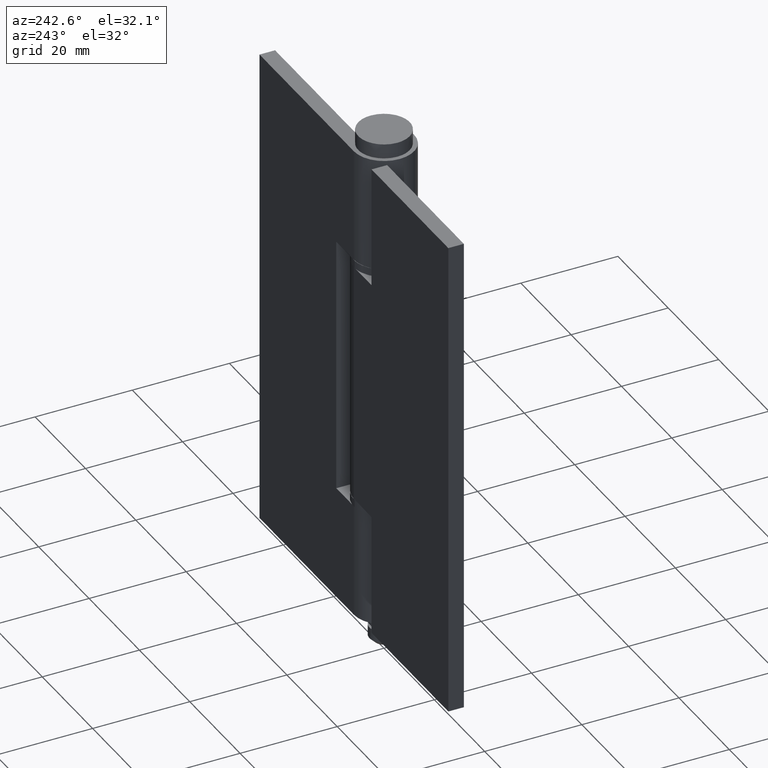
[diagram: clean part render]
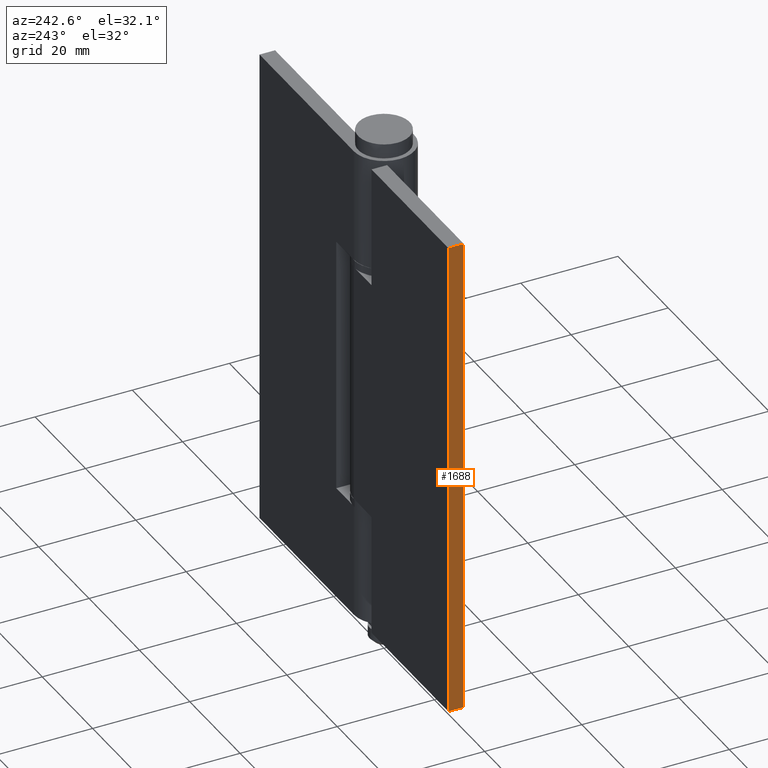
[diagram: same view with one face highlighted and labeled with its STEP entity id]
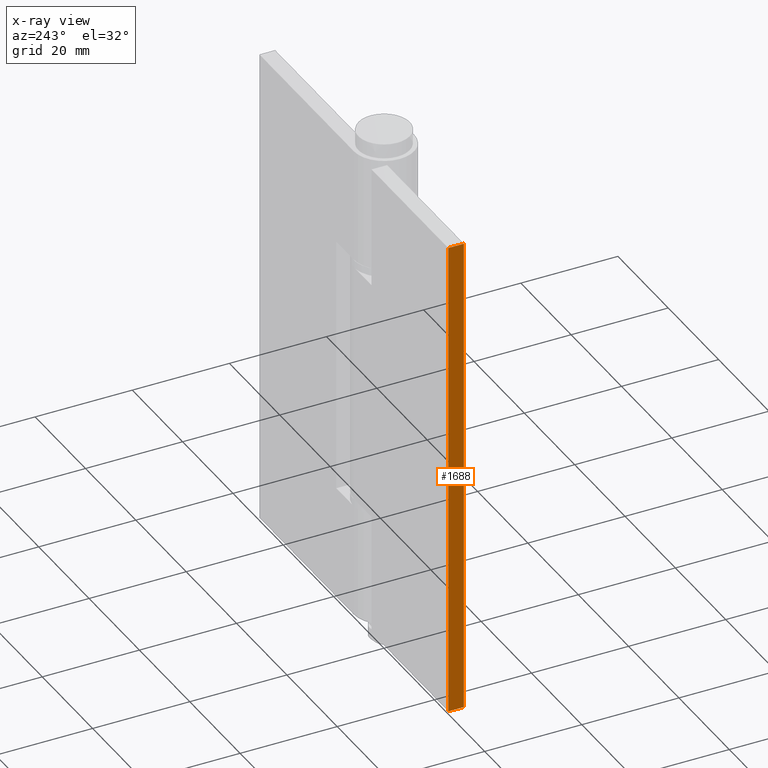
[diagram: x-ray of the same camera — body ghosted, the highlighted face saturated]
A machine part, auxiliary view. The second image highlights one B-rep face of the part: STEP entity #1688.
The next image is the same camera in x-ray: the body ghosted, the highlighted face saturated — about 0% of this face is hidden behind the body in this view.
In plain terms, the highlighted face is a freeform B-spline surface patch.
Its self-contained STEP definition (entity closure, byte-faithful):
#1653=CARTESIAN_POINT('',(-37.500008000000001,2.840159967684873,-4.994999456530599));
#1654=CARTESIAN_POINT('',(-37.500008000000001,2.840159967684873,104.994995138739300));
#1655=CARTESIAN_POINT('',(-37.500008000000001,6.359840889263936,-4.994999456530599));
#1656=CARTESIAN_POINT('',(-37.500008000000001,6.359840889263936,104.994995138739300));
#1657=B_SPLINE_SURFACE_WITH_KNOTS('',1,1,((#1653,#1655),(#1654,#1656)),.UNSPECIFIED.,.F.,.F.,.U.,(2,2),(2,2),(0.0,109.989994595269910),(0.0,3.519680921579062),.UNSPECIFIED.);
#1658=CARTESIAN_POINT('',(-37.500008000000001,3.0,0.0));
#1659=VERTEX_POINT('',#1658);
#1660=CARTESIAN_POINT('',(-37.500008000000001,6.200001000000000,0.0));
#1661=VERTEX_POINT('',#1660);
#1662=CARTESIAN_POINT('',(-37.500008000000001,3.0,0.0));
#1663=CARTESIAN_POINT('',(-37.500008000000001,6.200001000000000,0.0));
#1664=QUASI_UNIFORM_CURVE('',1,(#1662,#1663),.UNSPECIFIED.,.F.,.U.);
#1665=EDGE_CURVE('',#1659,#1661,#1664,.T.);
#1666=ORIENTED_EDGE('',*,*,#1665,.F.);
#1667=CARTESIAN_POINT('',(-37.500008000000001,3.0,99.999992999999805));
#1668=VERTEX_POINT('',#1667);
#1669=CARTESIAN_POINT('',(-37.500008000000001,3.0,99.999992999999805));
#1670=CARTESIAN_POINT('',(-37.500008000000001,3.0,0.0));
#1671=QUASI_UNIFORM_CURVE('',1,(#1669,#1670),.UNSPECIFIED.,.F.,.U.);
#1672=EDGE_CURVE('',#1668,#1659,#1671,.T.);
#1673=ORIENTED_EDGE('',*,*,#1672,.F.);
#1674=CARTESIAN_POINT('',(-37.500008000000001,6.200001000000000,99.999992999999805));
#1675=VERTEX_POINT('',#1674);
#1676=CARTESIAN_POINT('',(-37.500008000000001,3.0,99.999992999999805));
#1677=CARTESIAN_POINT('',(-37.500008000000001,6.200001000000000,99.999992999999805));
#1678=QUASI_UNIFORM_CURVE('',1,(#1676,#1677),.UNSPECIFIED.,.F.,.U.);
#1679=EDGE_CURVE('',#1668,#1675,#1678,.T.);
#1680=ORIENTED_EDGE('',*,*,#1679,.T.);
#1681=CARTESIAN_POINT('',(-37.500008000000001,6.200001000000000,99.999992999999805));
#1682=CARTESIAN_POINT('',(-37.500008000000001,6.200001000000000,0.0));
#1683=QUASI_UNIFORM_CURVE('',1,(#1681,#1682),.UNSPECIFIED.,.F.,.U.);
#1684=EDGE_CURVE('',#1675,#1661,#1683,.T.);
#1685=ORIENTED_EDGE('',*,*,#1684,.T.);
#1686=EDGE_LOOP('',(#1666,#1673,#1680,#1685));
#1687=FACE_OUTER_BOUND('',#1686,.T.);
#1688=ADVANCED_FACE('',(#1687),#1657,.T.);